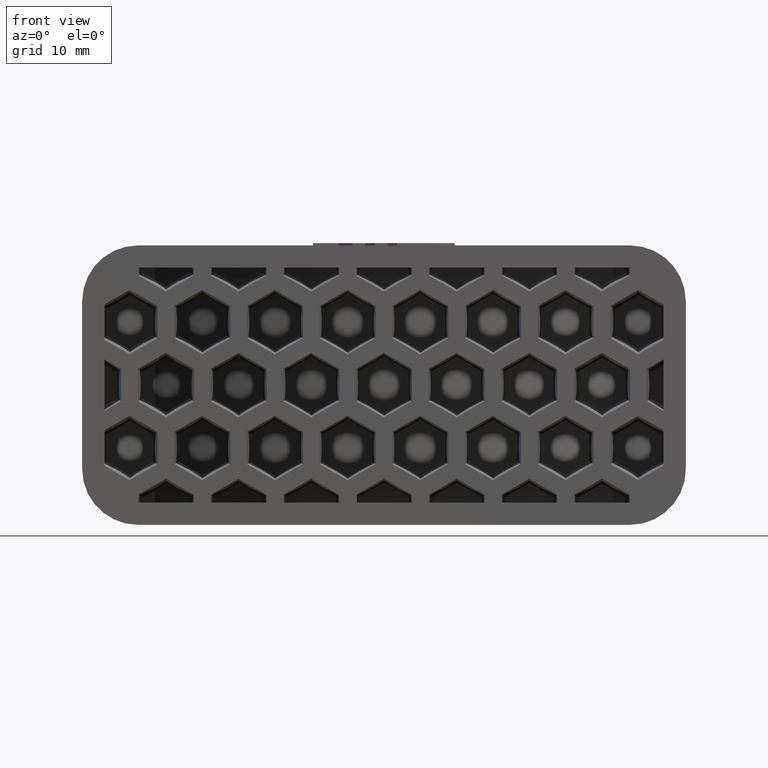
[diagram: clean part render]
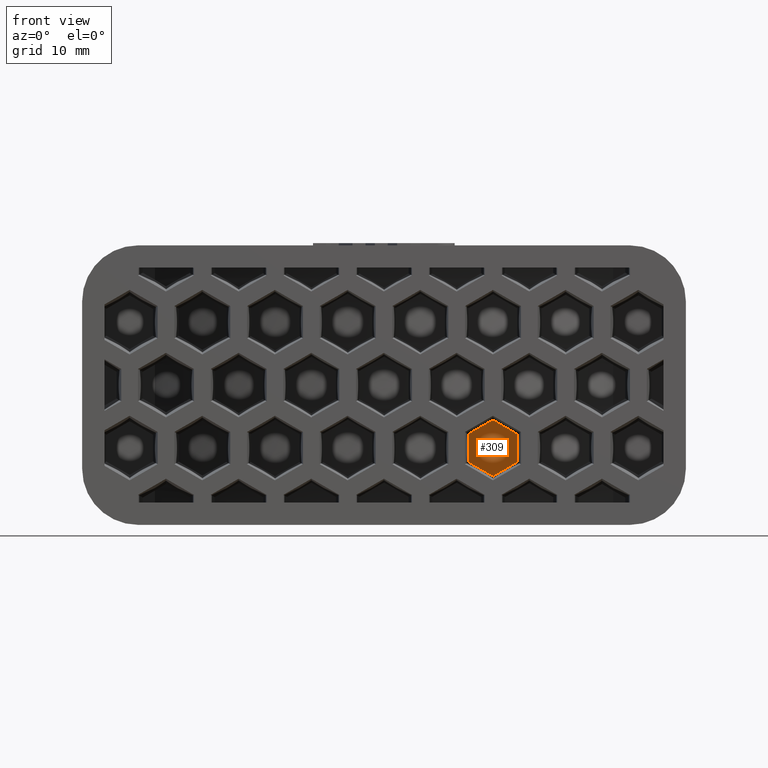
[diagram: same view with one face highlighted and labeled with its STEP entity id]
A machine part, front view. The second image highlights one B-rep face of the part: STEP entity #309.
In plain terms, the highlighted cylindrical surface (partial cylindrical patch) has radius 33.5 mm, axis along (0, 0, -1).
Its self-contained STEP definition (entity closure, byte-faithful):
#309 = ADVANCED_FACE( '', ( #916 ), #917, .T. );
#916 = FACE_OUTER_BOUND( '', #1616, .T. );
#917 = CYLINDRICAL_SURFACE( '', #1617, 33.5000000000000 );
#1616 = EDGE_LOOP( '', ( #3722, #3723, #3724, #3725, #3726, #3727 ) );
#1617 = AXIS2_PLACEMENT_3D( '', #3728, #3729, #3730 );
#3722 = ORIENTED_EDGE( '', *, *, #4910, .T. );
#3723 = ORIENTED_EDGE( '', *, *, #4916, .T. );
#3724 = ORIENTED_EDGE( '', *, *, #4913, .T. );
#3725 = ORIENTED_EDGE( '', *, *, #4915, .T. );
#3726 = ORIENTED_EDGE( '', *, *, #4918, .T. );
#3727 = ORIENTED_EDGE( '', *, *, #4919, .T. );
#3728 = CARTESIAN_POINT( '', ( -1.73472347597681E-014, 50.5000000000000, -10.5000000000000 ) );
#3729 = DIRECTION( '', ( 0.000000000000000, 0.000000000000000, -1.00000000000000 ) );
#3730 = DIRECTION( '', ( -1.00000000000000, 6.93889390390723E-017, 0.000000000000000 ) );
#4910 = EDGE_CURVE( '', #6109, #6111, #6113, .F. );
#4913 = EDGE_CURVE( '', #6114, #6116, #6118, .F. );
#4915 = EDGE_CURVE( '', #6116, #6119, #6121, .F. );
#4916 = EDGE_CURVE( '', #6111, #6114, #6122, .T. );
#4918 = EDGE_CURVE( '', #6119, #6123, #6125, .F. );
#4919 = EDGE_CURVE( '', #6123, #6109, #6126, .F. );
#6109 = VERTEX_POINT( '', #7888 );
#6111 = VERTEX_POINT( '', #7891 );
#6113 = ELLIPSE( '', #7894, 38.6883604603943, 33.5000000000000 );
#6114 = VERTEX_POINT( '', #7895 );
#6116 = VERTEX_POINT( '', #7898 );
#6118 = ELLIPSE( '', #7901, 38.6883604603943, 33.5000000000000 );
#6119 = VERTEX_POINT( '', #7902 );
#6121 = ELLIPSE( '', #7905, 38.6883604603943, 33.5000000000000 );
#6122 = LINE( '', #7906, #7907 );
#6123 = VERTEX_POINT( '', #7908 );
#6125 = LINE( '', #7911, #7912 );
#6126 = ELLIPSE( '', #7913, 38.6883604603943, 33.5000000000000 );
#7888 = CARTESIAN_POINT( '', ( 9.74999999999999, 18.4502340102147, -8.14404512453129 ) );
#7891 = CARTESIAN_POINT( '', ( 11.9150278298795, 19.1905427735772, -6.87914452498280 ) );
#7894 = AXIS2_PLACEMENT_3D( '', #9262, #9263, #9264 );
#7895 = CARTESIAN_POINT( '', ( 11.9150278298795, 19.1905427735772, -4.37918572421491 ) );
#7898 = CARTESIAN_POINT( '', ( 9.75000000000000, 18.4502340102147, -3.11428512466642 ) );
#7901 = AXIS2_PLACEMENT_3D( '', #9267, #9268, #9269 );
#7902 = CARTESIAN_POINT( '', ( 7.56182790653863, 17.8646088009981, -4.36582337740570 ) );
#7905 = AXIS2_PLACEMENT_3D( '', #9271, #9272, #9273 );
#7906 = CARTESIAN_POINT( '', ( 11.9150278298795, 19.1905427735773, -10.5000000000000 ) );
#7907 = VECTOR( '', #9274, 1000.00000000000 );
#7908 = CARTESIAN_POINT( '', ( 7.56182790653863, 17.8646088009981, -6.89250687179200 ) );
#7911 = CARTESIAN_POINT( '', ( 7.56182790653862, 17.8646088009981, -10.5000000000000 ) );
#7912 = VECTOR( '', #9276, 1000.00000000000 );
#7913 = AXIS2_PLACEMENT_3D( '', #9277, #9278, #9279 );
#9262 = CARTESIAN_POINT( '', ( -1.73472347597681E-014, 50.5000000000000, -13.1272352652079 ) );
#9263 = DIRECTION( '', ( 0.499923847578196, 0.0174524064372835, -0.865893503920754 ) );
#9264 = DIRECTION( '', ( 0.865366346075250, 0.0302100515148758, 0.500228387706894 ) );
#9267 = CARTESIAN_POINT( '', ( -1.73472347597681E-014, 50.5000000000000, 1.86890501601023 ) );
#9268 = DIRECTION( '', ( 0.499923847578195, 0.0174524064372835, 0.865893503920754 ) );
#9269 = DIRECTION( '', ( -0.865366346075250, -0.0302100515148758, 0.500228387706894 ) );
#9271 = CARTESIAN_POINT( '', ( -1.73472347597681E-014, 50.5000000000000, -9.38942523318749 ) );
#9272 = DIRECTION( '', ( -0.499923847578195, 0.0174524064372835, 0.865893503920754 ) );
#9273 = DIRECTION( '', ( 0.865366346075250, -0.0302100515148758, 0.500228387706894 ) );
#9274 = DIRECTION( '', ( 0.000000000000000, 0.000000000000000, 1.00000000000000 ) );
#9276 = DIRECTION( '', ( 0.000000000000000, 0.000000000000000, 1.00000000000000 ) );
#9277 = CARTESIAN_POINT( '', ( -1.73472347597681E-014, 50.5000000000000, -1.86890501601021 ) );
#9278 = DIRECTION( '', ( -0.499923847578196, 0.0174524064372835, -0.865893503920754 ) );
#9279 = DIRECTION( '', ( -0.865366346075250, 0.0302100515148758, 0.500228387706895 ) );